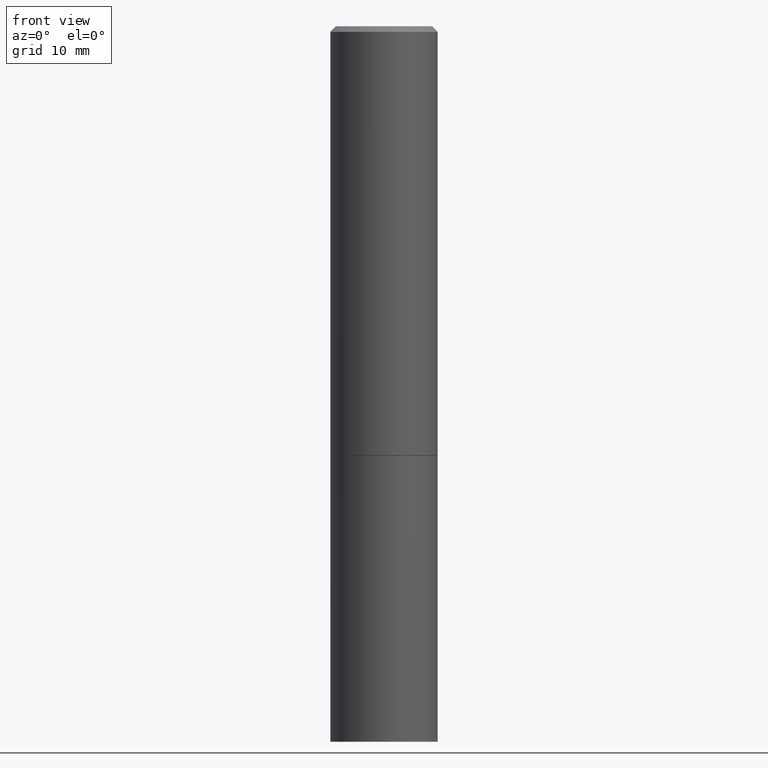
[diagram: clean part render]
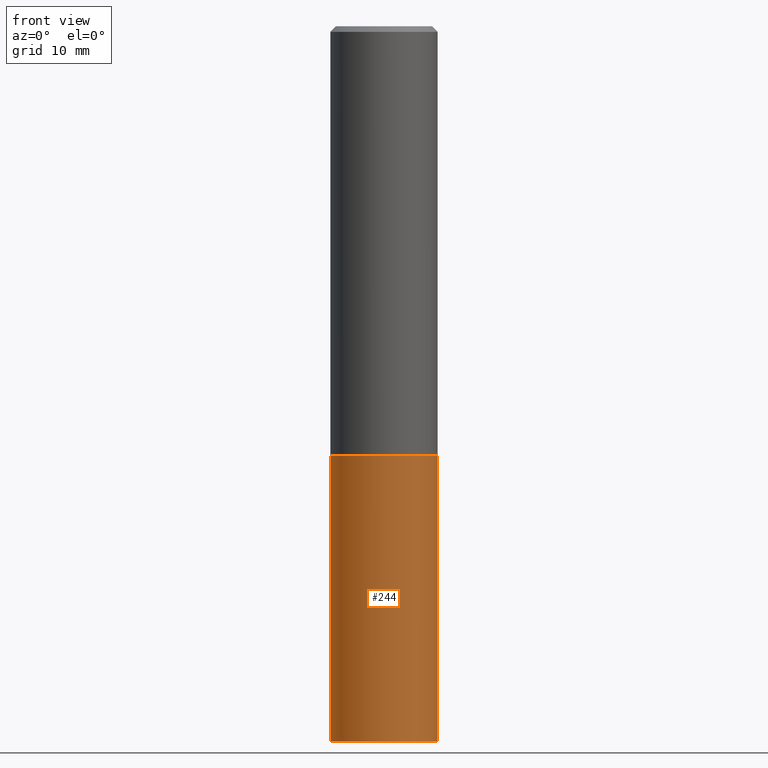
[diagram: same view with one face highlighted and labeled with its STEP entity id]
A machine part, front view. The second image highlights one B-rep face of the part: STEP entity #244.
In plain terms, the highlighted cylindrical surface (partial cylindrical patch) has radius 4.7625 mm, axis along (-0, 0, 1).
Its self-contained STEP definition (entity closure, byte-faithful):
#11 = VERTEX_POINT ( 'NONE', #12 ) ;
#12 = CARTESIAN_POINT ( 'NONE',  ( -0.1875000000000000278, -5.650695048136103317E-15, -2.500000000000000000 ) ) ;
#22 = AXIS2_PLACEMENT_3D ( 'NONE', #47, #319, #92 ) ;
#23 = ORIENTED_EDGE ( 'NONE', *, *, #109, .T. ) ;
#42 = VECTOR ( 'NONE', #340, 39.37007874015748143 ) ;
#47 = CARTESIAN_POINT ( 'NONE',  ( 0.000000000000000000, 0.000000000000000000, 0.000000000000000000 ) ) ;
#61 = EDGE_CURVE ( 'NONE', #273, #327, #223, .T. ) ;
#68 = DIRECTION ( 'NONE',  ( 1.000000000000000000, -6.982962677686266711E-15, 0.000000000000000000 ) ) ;
#73 = CIRCLE ( 'NONE', #190, 0.1875000000000000278 ) ;
#75 = EDGE_CURVE ( 'NONE', #235, #327, #73, .T. ) ;
#92 = DIRECTION ( 'NONE',  ( 1.000000000000000000, -6.982962677686265922E-15, 4.876176775795935793E-29 ) ) ;
#107 = FACE_OUTER_BOUND ( 'NONE', #182, .T. ) ;
#109 = EDGE_CURVE ( 'NONE', #11, #273, #187, .T. ) ;
#127 = ORIENTED_EDGE ( 'NONE', *, *, #61, .T. ) ;
#134 = CARTESIAN_POINT ( 'NONE',  ( 6.113672015462842613E-29, -8.728703347107864943E-15, -2.500000000000000000 ) ) ;
#146 = CARTESIAN_POINT ( 'NONE',  ( 0.1875000000000000278, -6.546527510330893974E-15, -1.500000000000000222 ) ) ;
#172 = DIRECTION ( 'NONE',  ( -2.445468806185136597E-29, 3.491481338843145583E-15, 1.000000000000000000 ) ) ;
#182 = EDGE_LOOP ( 'NONE', ( #219, #23, #127, #260 ) ) ;
#187 = CIRCLE ( 'NONE', #300, 0.1875000000000000278 ) ;
#190 = AXIS2_PLACEMENT_3D ( 'NONE', #283, #331, #251 ) ;
#211 = CARTESIAN_POINT ( 'NONE',  ( 0.1875000000000000278, -1.003800884917403995E-14, -2.500000000000000000 ) ) ;
#219 = ORIENTED_EDGE ( 'NONE', *, *, #294, .F. ) ;
#223 = LINE ( 'NONE', #290, #345 ) ;
#234 = LINE ( 'NONE', #317, #42 ) ;
#235 = VERTEX_POINT ( 'NONE', #279 ) ;
#244 = ADVANCED_FACE ( 'NONE', ( #107 ), #347, .T. ) ;
#251 = DIRECTION ( 'NONE',  ( 1.000000000000000000, -6.982962677686266711E-15, 0.000000000000000000 ) ) ;
#260 = ORIENTED_EDGE ( 'NONE', *, *, #75, .F. ) ;
#273 = VERTEX_POINT ( 'NONE', #211 ) ;
#279 = CARTESIAN_POINT ( 'NONE',  ( -0.1875000000000000278, -5.650695048136103317E-15, -1.500000000000000222 ) ) ;
#283 = CARTESIAN_POINT ( 'NONE',  ( 3.668203209277704895E-29, -5.237222008264718177E-15, -1.500000000000000222 ) ) ;
#290 = CARTESIAN_POINT ( 'NONE',  ( 0.1875000000000000278, -1.309305502066175008E-15, 9.142831454617381013E-30 ) ) ;
#294 = EDGE_CURVE ( 'NONE', #11, #235, #234, .T. ) ;
#300 = AXIS2_PLACEMENT_3D ( 'NONE', #134, #172, #68 ) ;
#306 = DIRECTION ( 'NONE',  ( -2.445468806185136877E-29, 3.491481338843145188E-15, 1.000000000000000000 ) ) ;
#317 = CARTESIAN_POINT ( 'NONE',  ( -0.1875000000000000278, 1.332267629550188046E-15, -9.223003294227947991E-30 ) ) ;
#319 = DIRECTION ( 'NONE',  ( -2.445468806185136597E-29, 3.491481338843145583E-15, 1.000000000000000000 ) ) ;
#327 = VERTEX_POINT ( 'NONE', #146 ) ;
#331 = DIRECTION ( 'NONE',  ( -2.445468806185136597E-29, 3.491481338843145583E-15, 1.000000000000000000 ) ) ;
#340 = DIRECTION ( 'NONE',  ( -2.445468806185136877E-29, 3.491481338843145188E-15, 1.000000000000000000 ) ) ;
#345 = VECTOR ( 'NONE', #306, 39.37007874015748143 ) ;
#347 = CYLINDRICAL_SURFACE ( 'NONE', #22, 0.1875000000000000278 ) ;